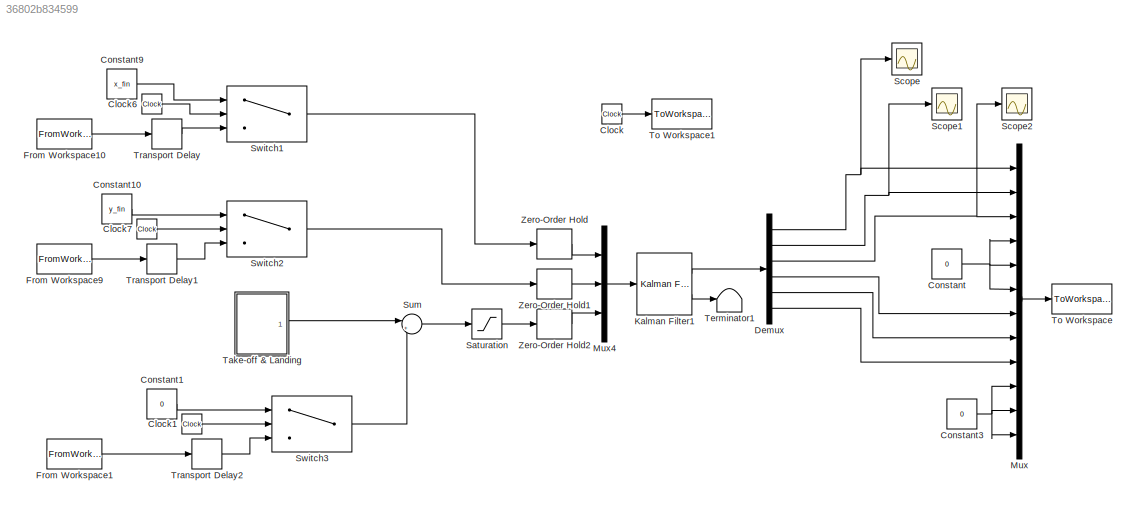
MODEL slx_36802b834599
KIND model
CONFIG AbsTol = auto
CONFIG FixedStep = auto
CONFIG MaxStep = auto
CONFIG MinStep = auto
CONFIG RelTol = 1e-3
CONFIG SampleTimeConstraint = Unconstrained
CONFIG Solver = VariableStepAuto
CONFIG SolverMode = Auto
CONFIG SolverName = VariableStepAuto
CONFIG StartTime = Ts
CONFIG StopTime = tsim+Ts
BLOCK [Clock] Clock
BLOCK [Clock] Clock1
BLOCK [Clock] Clock6
BLOCK [Clock] Clock7
BLOCK [Constant] Constant
  Value = 0
BLOCK [Constant] Constant1
  Value = 0
BLOCK [Constant] Constant10
  Value = y_fin
BLOCK [Constant] Constant3
  Value = 0
BLOCK [Constant] Constant9
  Value = x_fin
BLOCK [Demux] Demux
  DisplayOption = bar
  Outputs = 6
  Ports = [1, 6]
BLOCK [FromWorkspace] From Workspace1
  SampleTime = Ts
  VariableName = z_traj
  ZeroCross = on
BLOCK [FromWorkspace] From Workspace10
  SampleTime = Ts
  VariableName = x_traj
  ZeroCross = on
BLOCK [FromWorkspace] From Workspace9
  SampleTime = Ts
  VariableName = y_traj
  ZeroCross = on
BLOCK [Reference] Kalman Filter1  REF=ctrlSharedLib/Kalman Filter
  Ports = [1, 2]
  SourceBlock = ctrlSharedLib/Kalman Filter
  SourceType = ctrlKalmanFilter
BLOCK [Mux] Mux
  DisplayOption = bar
  Inputs = 12
  Ports = [12, 1]
BLOCK [Mux] Mux4
  DisplayOption = bar
  Inputs = 3
  Ports = [3, 1]
BLOCK [Saturate] Saturation
  InputPortMap = u0
  LowerLimit = 0
  Ports = [1, 1]
  UpperLimit = 2
BLOCK [Scope] Scope
  Ports = [1]
  ScopeSpecificationString = Simulink.scopes.TimeScopeBlockCfg('CurrentConfiguration', extmgr.ConfigurationSet(extmgr.Configuration('Core','General UI',true),extmgr.Configuration('Core','Source UI',true),extmgr.Configuration('Sources','WiredSimulink',true),extmgr.Configuration('Visuals','Time Domain',true,'SerializedDisplays',{struct('MinYLimReal','-3.99162','MaxYLimReal','26.53797','YLabelReal','','MinYLimMag','0.00000','Max...<+1360ch>
BLOCK [Scope] Scope1
  Ports = [1]
  ScopeSpecificationString = Simulink.scopes.TimeScopeBlockCfg('CurrentConfiguration', extmgr.ConfigurationSet(extmgr.Configuration('Core','General UI',true),extmgr.Configuration('Core','Source UI',true),extmgr.Configuration('Sources','WiredSimulink',true,'DataLoggingVariableName','ScopeData1'),extmgr.Configuration('Visuals','Time Domain',true,'SerializedDisplays',{struct('MinYLimReal','-4.51852','MaxYLimReal','26.73899','YLa...<+1399ch>
BLOCK [Scope] Scope2
  Ports = [1]
  ScopeSpecificationString = Simulink.scopes.TimeScopeBlockCfg('CurrentConfiguration', extmgr.ConfigurationSet(extmgr.Configuration('Core','General UI',true),extmgr.Configuration('Core','Source UI',true),extmgr.Configuration('Sources','WiredSimulink',true,'DataLoggingVariableName','ScopeData2'),extmgr.Configuration('Visuals','Time Domain',true,'SerializedDisplays',{struct('MinYLimReal','-0.25271','MaxYLimReal','2.27441','YLab...<+1395ch>
BLOCK [Sum] Sum
  IconShape = round
  InputSameDT = off
  Inputs = |++
  OutDataTypeStr = Inherit: Inherit via internal rule
  Ports = [2, 1]
  SaturateOnIntegerOverflow = off
BLOCK [Switch] Switch1
  Criteria = u2 > Threshold
  InputSameDT = off
  SaturateOnIntegerOverflow = off
  Threshold = time_traj+10
BLOCK [Switch] Switch2
  Criteria = u2 > Threshold
  InputSameDT = off
  SaturateOnIntegerOverflow = off
  Threshold = time_traj+10
BLOCK [Switch] Switch3
  Criteria = u2 > Threshold
  InputSameDT = off
  SaturateOnIntegerOverflow = off
  Threshold = time_traj+10
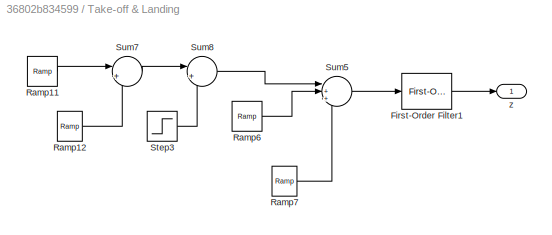
BLOCK [SubSystem] Take-off & Landing
  Ports = [0, 1]
  RequestExecContextInheritance = off
  Variant = off
BLOCK [Reference] Take-off & Landing/First-Order Filter1  REF=powerlib_meascontrol/Filters/First-Order
Filter
  Ports = [1, 1]
  SourceBlock = powerlib_meascontrol/Filters/First-Order\nFilter
  SourceType = First-Order Filter
BLOCK [Reference] Take-off & Landing/Ramp11  REF=simulink/Sources/Ramp
  Ports = [0, 1]
  SourceBlock = simulink/Sources/Ramp
  SourceType = Ramp
BLOCK [Reference] Take-off & Landing/Ramp12  REF=simulink/Sources/Ramp
  Ports = [0, 1]
  SourceBlock = simulink/Sources/Ramp
  SourceType = Ramp
BLOCK [Reference] Take-off & Landing/Ramp6  REF=simulink/Sources/Ramp
  Ports = [0, 1]
  SourceBlock = simulink/Sources/Ramp
  SourceType = Ramp
BLOCK [Reference] Take-off & Landing/Ramp7  REF=simulink/Sources/Ramp
  Ports = [0, 1]
  SourceBlock = simulink/Sources/Ramp
  SourceType = Ramp
BLOCK [Step] Take-off & Landing/Step3
  After = 0.25
  SampleTime = 0
  Time = 0
BLOCK [Sum] Take-off & Landing/Sum5
  IconShape = round
  InputSameDT = off
  Inputs = |+++
  OutDataTypeStr = Inherit: Inherit via internal rule
  Ports = [3, 1]
  SaturateOnIntegerOverflow = off
BLOCK [Sum] Take-off & Landing/Sum7
  IconShape = round
  InputSameDT = off
  Inputs = |++
  OutDataTypeStr = Inherit: Inherit via internal rule
  Ports = [2, 1]
  SaturateOnIntegerOverflow = off
BLOCK [Sum] Take-off & Landing/Sum8
  IconShape = round
  InputSameDT = off
  Inputs = |++
  OutDataTypeStr = Inherit: Inherit via internal rule
  Ports = [2, 1]
  SaturateOnIntegerOverflow = off
BLOCK [Outport] Take-off & Landing/z
  IconDisplay = Port number
BLOCK [Terminator] Terminator1
BLOCK [ToWorkspace] To Workspace
  FixptAsFi = on
  MaxDataPoints = inf
  Ports = [1]
  SampleTime = Ts
  Save2DSignal = 3-D array (concatenate along third dimension)
  VariableName = zk
BLOCK [ToWorkspace] To Workspace1
  FixptAsFi = on
  MaxDataPoints = inf
  Ports = [1]
  SampleTime = Ts
  Save2DSignal = 3-D array (concatenate along third dimension)
  VariableName = t_traj
BLOCK [TransportDelay] Transport Delay
  DelayTime = 10
  Ports = [1, 1]
BLOCK [TransportDelay] Transport Delay1
  DelayTime = 10
  Ports = [1, 1]
BLOCK [TransportDelay] Transport Delay2
  DelayTime = 10
  Ports = [1, 1]
BLOCK [ZeroOrderHold] Zero-Order Hold
  SampleTime = Ts
BLOCK [ZeroOrderHold] Zero-Order Hold1
  SampleTime = Ts
BLOCK [ZeroOrderHold] Zero-Order Hold2
  SampleTime = Ts
LINE Clock1:1 -> Switch3:2
LINE Clock6:1 -> Switch1:2
LINE Clock7:1 -> Switch2:2
LINE Clock:1 -> To Workspace1:1
LINE Constant10:1 -> Switch2:1
LINE Constant1:1 -> Switch3:1
NET Constant3:1 -> Mux:10, Mux:11, Mux:12
LINE Constant9:1 -> Switch1:1
NET Constant:1 -> Mux:4, Mux:5, Mux:6
NET Demux:1 -> Mux:1, Scope:1
NET Demux:2 -> Mux:2, Scope1:1
NET Demux:3 -> Mux:3, Scope2:1
LINE Demux:4 -> Mux:7
LINE Demux:5 -> Mux:8
LINE Demux:6 -> Mux:9
LINE From Workspace10:1 -> Transport Delay:1
LINE From Workspace1:1 -> Transport Delay2:1
LINE From Workspace9:1 -> Transport Delay1:1
LINE Kalman Filter1:1 -> Demux:1
LINE Kalman Filter1:2 -> Terminator1:1
LINE Mux4:1 -> Kalman Filter1:1
LINE Mux:1 -> To Workspace:1
LINE Saturation:1 -> Zero-Order Hold2:1
LINE Sum:1 -> Saturation:1
LINE Switch1:1 -> Zero-Order Hold:1
LINE Switch2:1 -> Zero-Order Hold1:1
LINE Switch3:1 -> Sum:2
LINE Take-off & Landing/First-Order Filter1:1 -> Take-off & Landing/z:1
LINE Take-off & Landing/Ramp11:1 -> Take-off & Landing/Sum7:1
LINE Take-off & Landing/Ramp12:1 -> Take-off & Landing/Sum7:2
LINE Take-off & Landing/Ramp6:1 -> Take-off & Landing/Sum5:2
LINE Take-off & Landing/Ramp7:1 -> Take-off & Landing/Sum5:3
LINE Take-off & Landing/Step3:1 -> Take-off & Landing/Sum8:2
LINE Take-off & Landing/Sum5:1 -> Take-off & Landing/First-Order Filter1:1
LINE Take-off & Landing/Sum7:1 -> Take-off & Landing/Sum8:1
LINE Take-off & Landing/Sum8:1 -> Take-off & Landing/Sum5:1
LINE Take-off & Landing:1 -> Sum:1
LINE Transport Delay1:1 -> Switch2:3
LINE Transport Delay2:1 -> Switch3:3
LINE Transport Delay:1 -> Switch1:3
LINE Zero-Order Hold1:1 -> Mux4:2
LINE Zero-Order Hold2:1 -> Mux4:3
LINE Zero-Order Hold:1 -> Mux4:1
note: NET lines group one-source signal fan-out (src -> all destinations, sorted); 1:1 wires keep LINE
